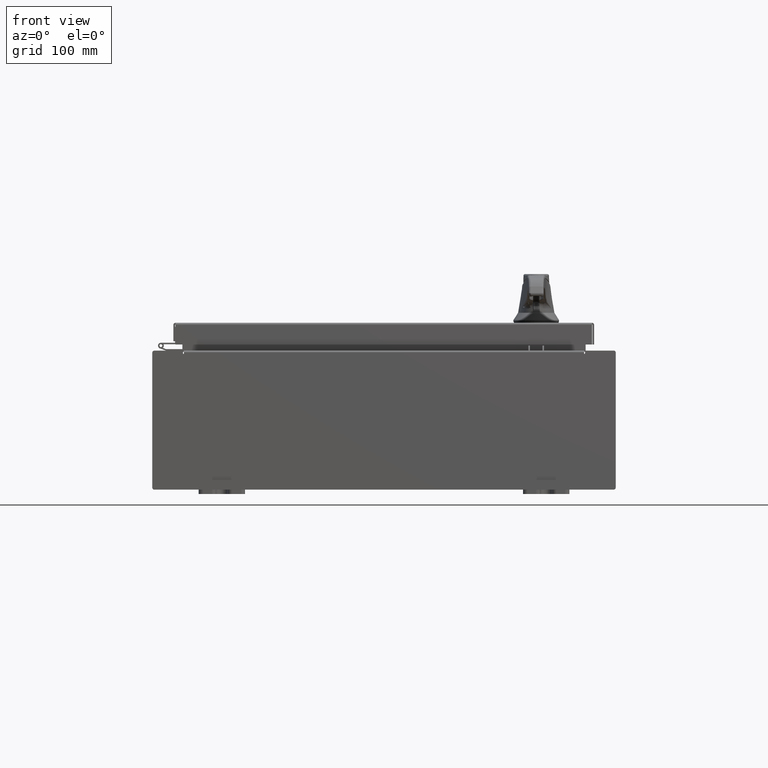
[diagram: clean part render]
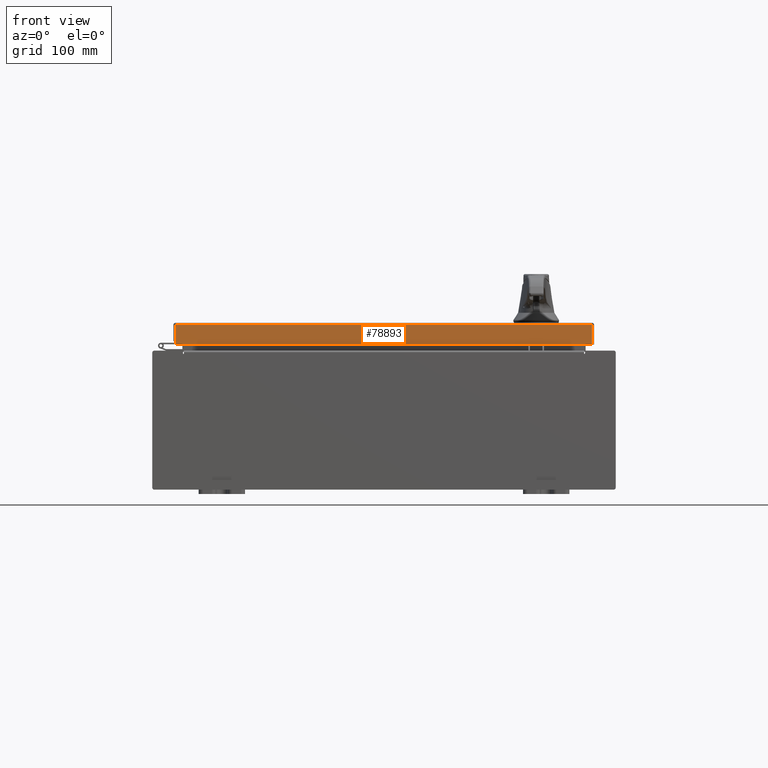
[diagram: same view with one face highlighted and labeled with its STEP entity id]
A machine part, front view. The second image highlights one B-rep face of the part: STEP entity #78893.
In plain terms, the highlighted planar face has unit normal (-0, 1, -0).
Its self-contained STEP definition (entity closure, byte-faithful):
#3388 = AXIS2_PLACEMENT_3D ( 'NONE', #61814, #51677, #96136 ) ;
#4335 = ORIENTED_EDGE ( 'NONE', *, *, #110409, .F. ) ;
#7202 = DIRECTION ( 'NONE',  ( 0.0000000000000000000, -3.798629886902798700E-015, -1.000000000000000000 ) ) ;
#8625 = CARTESIAN_POINT ( 'NONE',  ( -8.989157864376267100, -9.094000000000003000, -0.9376999999999976500 ) ) ;
#9106 = DIRECTION ( 'NONE',  ( -0.0000000000000000000, -3.798629886902798700E-015, -1.000000000000000000 ) ) ;
#12814 = CARTESIAN_POINT ( 'NONE',  ( -8.989157864376267100, -9.093999999999999400, -0.08769999999999997200 ) ) ;
#13908 = LINE ( 'NONE', #90244, #33972 ) ;
#16477 = CARTESIAN_POINT ( 'NONE',  ( 8.989157864376268800, -9.093999999999999400, -0.08769999999999997200 ) ) ;
#18417 = EDGE_LOOP ( 'NONE', ( #4335, #103143, #24939, #46498 ) ) ;
#24939 = ORIENTED_EDGE ( 'NONE', *, *, #41385, .F. ) ;
#32974 = CARTESIAN_POINT ( 'NONE',  ( -8.989157864376267100, -9.093999999999999400, 3.480555384750563700E-014 ) ) ;
#33972 = VECTOR ( 'NONE', #81309, 39.37007874015748100 ) ;
#35792 = VERTEX_POINT ( 'NONE', #68712 ) ;
#41385 = EDGE_CURVE ( 'NONE', #35792, #77417, #57644, .T. ) ;
#45351 = DIRECTION ( 'NONE',  ( -1.000000000000000000, -8.758115402030108600E-047, 1.203722403024570700E-016 ) ) ;
#46498 = ORIENTED_EDGE ( 'NONE', *, *, #109392, .F. ) ;
#51598 = CARTESIAN_POINT ( 'NONE',  ( 8.989157864376268800, -9.093999999999999400, -0.07469999999999972500 ) ) ;
#51677 = DIRECTION ( 'NONE',  ( -4.572495895663590700E-031, 1.000000000000000000, -3.798629886902798700E-015 ) ) ;
#54940 = VERTEX_POINT ( 'NONE', #16477 ) ;
#57644 = LINE ( 'NONE', #79279, #83048 ) ;
#60314 = EDGE_CURVE ( 'NONE', #88639, #77417, #109825, .T. ) ;
#61814 = CARTESIAN_POINT ( 'NONE',  ( 4.158227767516469000E-030, -9.093999999999999400, 3.480555384750563700E-014 ) ) ;
#62117 = LINE ( 'NONE', #51598, #84781 ) ;
#64416 = VECTOR ( 'NONE', #7202, 39.37007874015748100 ) ;
#68712 = CARTESIAN_POINT ( 'NONE',  ( 8.989157864376268800, -9.094000000000003000, -0.9376999999999997600 ) ) ;
#71607 = FACE_OUTER_BOUND ( 'NONE', #18417, .T. ) ;
#77417 = VERTEX_POINT ( 'NONE', #8625 ) ;
#78893 = ADVANCED_FACE ( 'NONE', ( #71607 ), #78962, .F. ) ;
#78962 = PLANE ( 'NONE',  #3388 ) ;
#79279 = CARTESIAN_POINT ( 'NONE',  ( 9.077999999999999400, -9.094000000000003000, -0.9376999999999997600 ) ) ;
#81309 = DIRECTION ( 'NONE',  ( 1.000000000000000000, 4.572495895663590700E-031, -1.754005138259407700E-045 ) ) ;
#83048 = VECTOR ( 'NONE', #45351, 39.37007874015748100 ) ;
#84781 = VECTOR ( 'NONE', #9106, 39.37007874015748100 ) ;
#88639 = VERTEX_POINT ( 'NONE', #12814 ) ;
#90244 = CARTESIAN_POINT ( 'NONE',  ( 9.077999999999999400, -9.093999999999999400, -0.08769999999999997200 ) ) ;
#96136 = DIRECTION ( 'NONE',  ( 0.0000000000000000000, 3.798629886902798700E-015, 1.000000000000000000 ) ) ;
#103143 = ORIENTED_EDGE ( 'NONE', *, *, #60314, .T. ) ;
#109392 = EDGE_CURVE ( 'NONE', #54940, #35792, #62117, .T. ) ;
#109825 = LINE ( 'NONE', #32974, #64416 ) ;
#110409 = EDGE_CURVE ( 'NONE', #88639, #54940, #13908, .T. ) ;